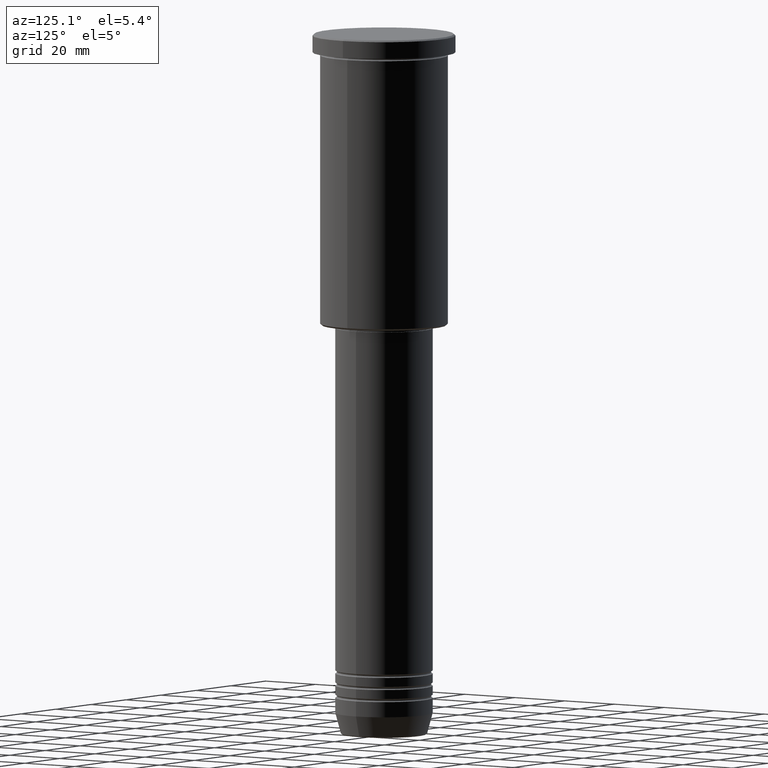
[diagram: clean part render]
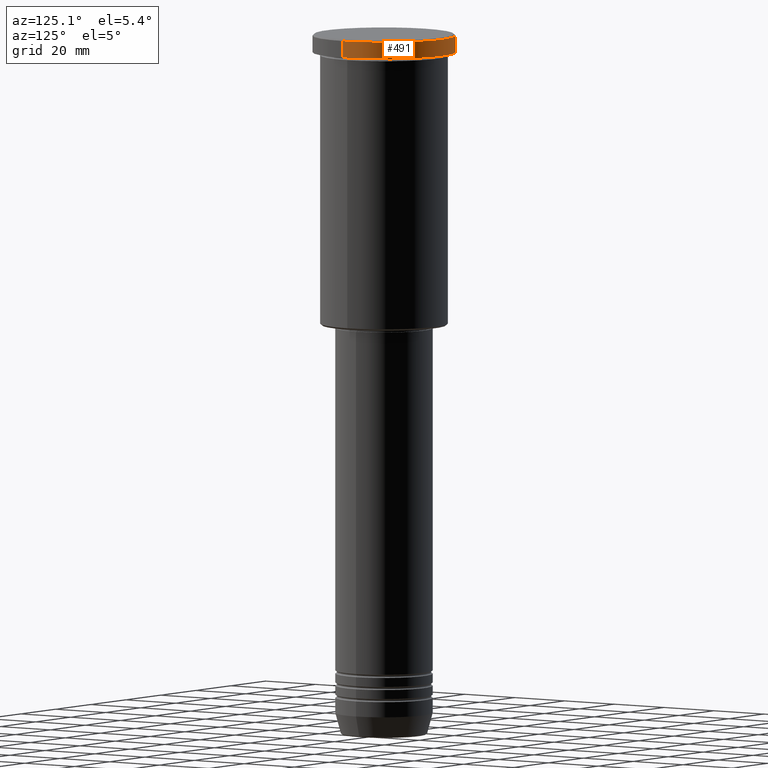
[diagram: same view with one face highlighted and labeled with its STEP entity id]
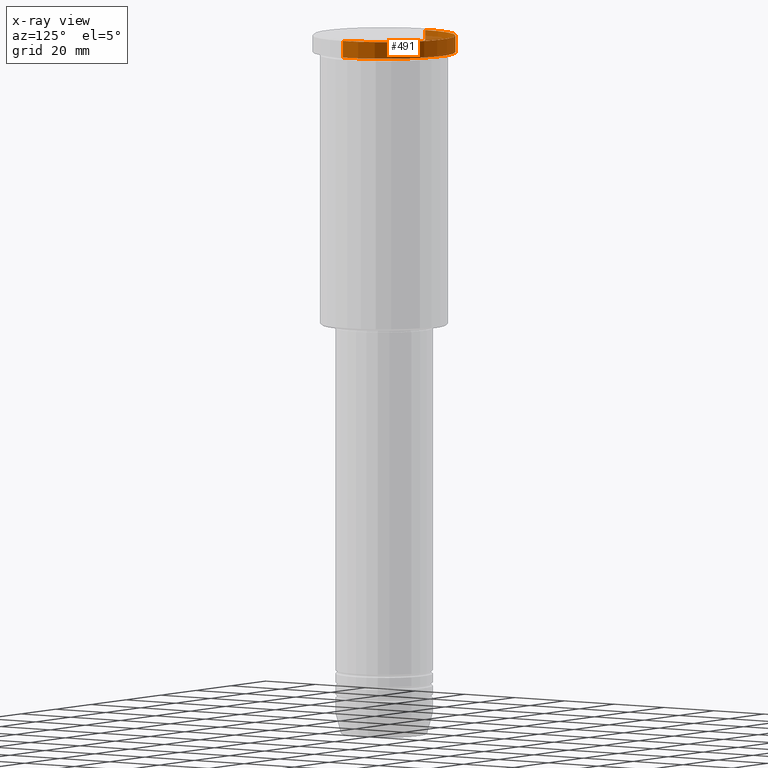
[diagram: x-ray of the same camera — body ghosted, the highlighted face saturated]
A machine part, auxiliary view. The second image highlights one B-rep face of the part: STEP entity #491.
The next image is the same camera in x-ray: the body ghosted, the highlighted face saturated — about 3% of this face is hidden behind the body in this view.
In plain terms, the highlighted cylindrical surface (partial cylindrical patch) has radius 23.5 mm, axis along (-0, -0, 1).
Its self-contained STEP definition (entity closure, byte-faithful):
#107 = ORIENTED_EDGE ( 'NONE', *, *, #616, .T. ) ;
#119 = DIRECTION ( 'NONE',  ( 1.000000000000000000, 0.000000000000000000, 0.000000000000000000 ) ) ;
#145 = LINE ( 'NONE', #528, #982 ) ;
#228 = FACE_OUTER_BOUND ( 'NONE', #249, .T. ) ;
#249 = EDGE_LOOP ( 'NONE', ( #675, #107, #479, #812 ) ) ;
#257 = CARTESIAN_POINT ( 'NONE',  ( 23.50000000000000000, 0.000000000000000000, -5.999999999999993783 ) ) ;
#325 = DIRECTION ( 'NONE',  ( -0.000000000000000000, -0.000000000000000000, 1.000000000000000000 ) ) ;
#401 = CIRCLE ( 'NONE', #925, 23.50000000000000000 ) ;
#410 = CYLINDRICAL_SURFACE ( 'NONE', #780, 23.50000000000000000 ) ;
#416 = EDGE_CURVE ( 'NONE', #658, #1015, #145, .T. ) ;
#442 = AXIS2_PLACEMENT_3D ( 'NONE', #940, #606, #119 ) ;
#443 = LINE ( 'NONE', #897, #782 ) ;
#479 = ORIENTED_EDGE ( 'NONE', *, *, #1135, .T. ) ;
#491 = ADVANCED_FACE ( 'NONE', ( #228 ), #410, .T. ) ;
#526 = CARTESIAN_POINT ( 'NONE',  ( -23.50000000000000000, 2.877919977996280320E-15, -5.999999999999993783 ) ) ;
#528 = CARTESIAN_POINT ( 'NONE',  ( 23.50000000000000000, 0.000000000000000000, 0.000000000000000000 ) ) ;
#606 = DIRECTION ( 'NONE',  ( 0.000000000000000000, 0.000000000000000000, -1.000000000000000000 ) ) ;
#616 = EDGE_CURVE ( 'NONE', #848, #760, #443, .T. ) ;
#627 = CARTESIAN_POINT ( 'NONE',  ( 0.000000000000000000, 0.000000000000000000, -5.999999999999993783 ) ) ;
#632 = DIRECTION ( 'NONE',  ( -0.000000000000000000, -0.000000000000000000, 1.000000000000000000 ) ) ;
#658 = VERTEX_POINT ( 'NONE', #257 ) ;
#675 = ORIENTED_EDGE ( 'NONE', *, *, #684, .T. ) ;
#684 = EDGE_CURVE ( 'NONE', #658, #848, #401, .T. ) ;
#760 = VERTEX_POINT ( 'NONE', #1017 ) ;
#780 = AXIS2_PLACEMENT_3D ( 'NONE', #966, #325, #874 ) ;
#782 = VECTOR ( 'NONE', #1164, 1000.000000000000000 ) ;
#812 = ORIENTED_EDGE ( 'NONE', *, *, #416, .F. ) ;
#847 = CARTESIAN_POINT ( 'NONE',  ( 23.50000000000000000, 0.000000000000000000, -0.4999999999999726885 ) ) ;
#848 = VERTEX_POINT ( 'NONE', #526 ) ;
#874 = DIRECTION ( 'NONE',  ( 1.000000000000000000, 0.000000000000000000, 0.000000000000000000 ) ) ;
#897 = CARTESIAN_POINT ( 'NONE',  ( -23.50000000000000000, 2.877919977996280320E-15, 0.000000000000000000 ) ) ;
#925 = AXIS2_PLACEMENT_3D ( 'NONE', #627, #632, #981 ) ;
#940 = CARTESIAN_POINT ( 'NONE',  ( 0.000000000000000000, 0.000000000000000000, -0.4999999999999726885 ) ) ;
#966 = CARTESIAN_POINT ( 'NONE',  ( 0.000000000000000000, 0.000000000000000000, 0.000000000000000000 ) ) ;
#981 = DIRECTION ( 'NONE',  ( 1.000000000000000000, 0.000000000000000000, 0.000000000000000000 ) ) ;
#982 = VECTOR ( 'NONE', #1155, 1000.000000000000000 ) ;
#1015 = VERTEX_POINT ( 'NONE', #847 ) ;
#1017 = CARTESIAN_POINT ( 'NONE',  ( -23.50000000000000000, 2.877919977996280320E-15, -0.4999999999999726885 ) ) ;
#1042 = CIRCLE ( 'NONE', #442, 23.50000000000000000 ) ;
#1135 = EDGE_CURVE ( 'NONE', #760, #1015, #1042, .T. ) ;
#1155 = DIRECTION ( 'NONE',  ( -0.000000000000000000, -0.000000000000000000, 1.000000000000000000 ) ) ;
#1164 = DIRECTION ( 'NONE',  ( -0.000000000000000000, -0.000000000000000000, 1.000000000000000000 ) ) ;